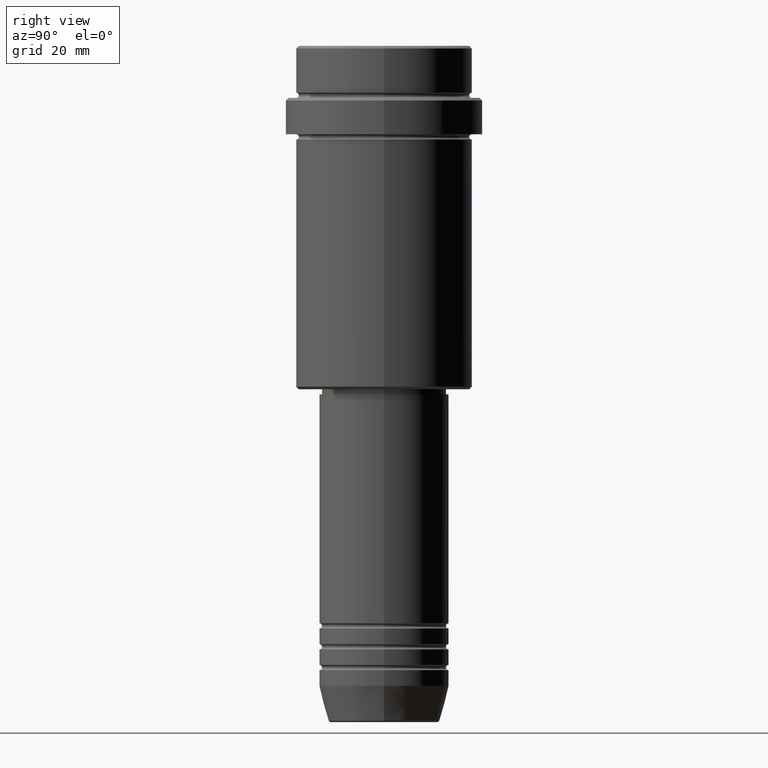
[diagram: clean part render]
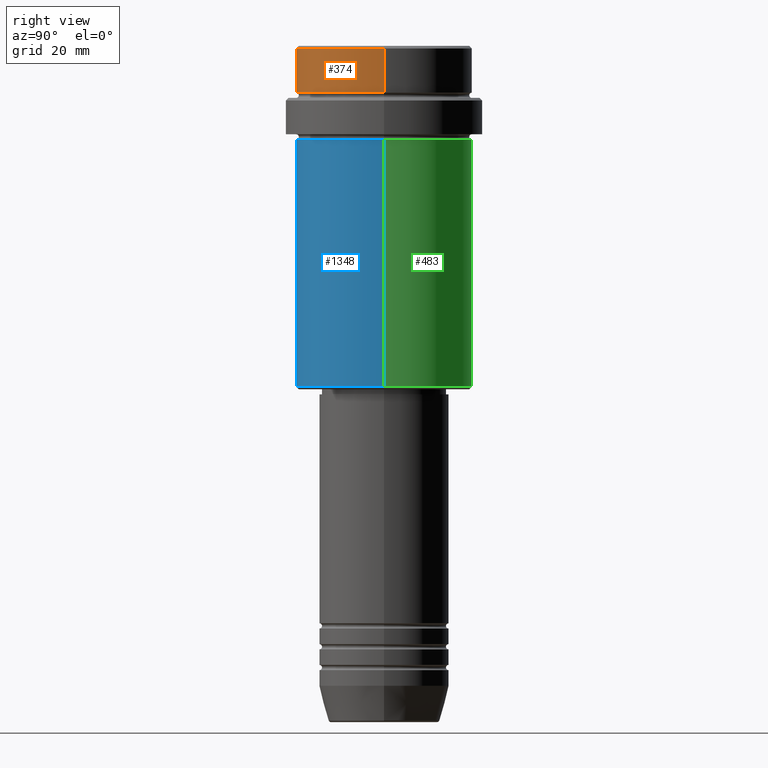
[diagram: same view with three faces highlighted in distinct colors, each labeled with its STEP entity id]
A machine part, right view with three faces highlighted in distinct colors.
Their STEP definitions:

[orange] entity #374 — the highlighted cylindrical surface (partial cylindrical patch) has radius 17 mm, axis along (-0, -0, 1).
#48 = VECTOR ( 'NONE', #995, 1000.000000000000000 ) ;
#126 = EDGE_CURVE ( 'NONE', #633, #400, #157, .T. ) ;
#130 = DIRECTION ( 'NONE',  ( -0.000000000000000000, -0.000000000000000000, 1.000000000000000000 ) ) ;
#157 = LINE ( 'NONE', #910, #572 ) ;
#161 = AXIS2_PLACEMENT_3D ( 'NONE', #1078, #634, #1083 ) ;
#163 = CIRCLE ( 'NONE', #161, 16.99999999999999289 ) ;
#359 = DIRECTION ( 'NONE',  ( -0.000000000000000000, -0.000000000000000000, 1.000000000000000000 ) ) ;
#374 = ADVANCED_FACE ( 'NONE', ( #1056 ), #819, .T. ) ;
#380 = ORIENTED_EDGE ( 'NONE', *, *, #126, .F. ) ;
#386 = AXIS2_PLACEMENT_3D ( 'NONE', #942, #626, #1378 ) ;
#400 = VERTEX_POINT ( 'NONE', #973 ) ;
#480 = EDGE_LOOP ( 'NONE', ( #380, #1364, #1192, #1174 ) ) ;
#541 = CARTESIAN_POINT ( 'NONE',  ( -16.99999999999998579, 2.081899558550499491E-15, -8.999999999999998224 ) ) ;
#572 = VECTOR ( 'NONE', #359, 1000.000000000000000 ) ;
#586 = CARTESIAN_POINT ( 'NONE',  ( 0.000000000000000000, 0.000000000000000000, -8.999999999999998224 ) ) ;
#626 = DIRECTION ( 'NONE',  ( -0.000000000000000000, -0.000000000000000000, 1.000000000000000000 ) ) ;
#633 = VERTEX_POINT ( 'NONE', #541 ) ;
#634 = DIRECTION ( 'NONE',  ( 0.000000000000000000, 0.000000000000000000, -1.000000000000000000 ) ) ;
#668 = LINE ( 'NONE', #761, #48 ) ;
#761 = CARTESIAN_POINT ( 'NONE',  ( 16.99999999999999289, 0.000000000000000000, 0.000000000000000000 ) ) ;
#769 = CARTESIAN_POINT ( 'NONE',  ( 16.99999999999998579, 0.000000000000000000, -8.999999999999998224 ) ) ;
#817 = EDGE_CURVE ( 'NONE', #633, #1114, #1357, .T. ) ;
#819 = CYLINDRICAL_SURFACE ( 'NONE', #386, 16.99999999999999289 ) ;
#905 = CARTESIAN_POINT ( 'NONE',  ( 16.99999999999999289, 0.000000000000000000, -0.4999999999999622524 ) ) ;
#910 = CARTESIAN_POINT ( 'NONE',  ( -16.99999999999999289, 2.081899558550499885E-15, 0.000000000000000000 ) ) ;
#923 = AXIS2_PLACEMENT_3D ( 'NONE', #586, #130, #1256 ) ;
#932 = EDGE_CURVE ( 'NONE', #1114, #1403, #668, .T. ) ;
#942 = CARTESIAN_POINT ( 'NONE',  ( 0.000000000000000000, 0.000000000000000000, 0.000000000000000000 ) ) ;
#973 = CARTESIAN_POINT ( 'NONE',  ( -16.99999999999999289, 2.081899558550499885E-15, -0.4999999999999622524 ) ) ;
#995 = DIRECTION ( 'NONE',  ( -0.000000000000000000, -0.000000000000000000, 1.000000000000000000 ) ) ;
#1056 = FACE_OUTER_BOUND ( 'NONE', #480, .T. ) ;
#1078 = CARTESIAN_POINT ( 'NONE',  ( 0.000000000000000000, 0.000000000000000000, -0.4999999999999622524 ) ) ;
#1083 = DIRECTION ( 'NONE',  ( 1.000000000000000000, 0.000000000000000000, 0.000000000000000000 ) ) ;
#1114 = VERTEX_POINT ( 'NONE', #769 ) ;
#1174 = ORIENTED_EDGE ( 'NONE', *, *, #1249, .T. ) ;
#1192 = ORIENTED_EDGE ( 'NONE', *, *, #932, .T. ) ;
#1249 = EDGE_CURVE ( 'NONE', #1403, #400, #163, .T. ) ;
#1256 = DIRECTION ( 'NONE',  ( 1.000000000000000000, 0.000000000000000000, 0.000000000000000000 ) ) ;
#1357 = CIRCLE ( 'NONE', #923, 16.99999999999998579 ) ;
#1364 = ORIENTED_EDGE ( 'NONE', *, *, #817, .T. ) ;
#1378 = DIRECTION ( 'NONE',  ( 1.000000000000000000, 0.000000000000000000, 0.000000000000000000 ) ) ;
#1403 = VERTEX_POINT ( 'NONE', #905 ) ;

[blue] entity #1348 — the highlighted cylindrical surface (partial cylindrical patch) has radius 17 mm, axis along (-0, -0, 1).
#60 = VERTEX_POINT ( 'NONE', #1008 ) ;
#98 = ORIENTED_EDGE ( 'NONE', *, *, #246, .F. ) ;
#137 = CIRCLE ( 'NONE', #1260, 16.99999999999998579 ) ;
#168 = VERTEX_POINT ( 'NONE', #459 ) ;
#199 = CARTESIAN_POINT ( 'NONE',  ( -16.99999999999999289, 2.081899558550499885E-15, -65.50000000000001421 ) ) ;
#211 = DIRECTION ( 'NONE',  ( -0.000000000000000000, -0.000000000000000000, 1.000000000000000000 ) ) ;
#218 = CARTESIAN_POINT ( 'NONE',  ( 16.99999999999999289, 0.000000000000000000, 0.000000000000000000 ) ) ;
#246 = EDGE_CURVE ( 'NONE', #437, #168, #921, .T. ) ;
#257 = CARTESIAN_POINT ( 'NONE',  ( 0.000000000000000000, 0.000000000000000000, 0.000000000000000000 ) ) ;
#391 = CIRCLE ( 'NONE', #603, 16.99999999999999289 ) ;
#437 = VERTEX_POINT ( 'NONE', #199 ) ;
#459 = CARTESIAN_POINT ( 'NONE',  ( -16.99999999999998579, 2.081899558550499491E-15, -18.00000000000000711 ) ) ;
#468 = DIRECTION ( 'NONE',  ( -0.000000000000000000, -0.000000000000000000, 1.000000000000000000 ) ) ;
#591 = FACE_OUTER_BOUND ( 'NONE', #1173, .T. ) ;
#603 = AXIS2_PLACEMENT_3D ( 'NONE', #1207, #211, #650 ) ;
#650 = DIRECTION ( 'NONE',  ( -1.000000000000000000, 0.000000000000000000, 0.000000000000000000 ) ) ;
#684 = CARTESIAN_POINT ( 'NONE',  ( -16.99999999999999289, 2.081899558550499885E-15, 0.000000000000000000 ) ) ;
#696 = CARTESIAN_POINT ( 'NONE',  ( 16.99999999999999289, 0.000000000000000000, -65.50000000000001421 ) ) ;
#739 = EDGE_CURVE ( 'NONE', #168, #60, #137, .T. ) ;
#745 = DIRECTION ( 'NONE',  ( -0.000000000000000000, -0.000000000000000000, 1.000000000000000000 ) ) ;
#788 = ORIENTED_EDGE ( 'NONE', *, *, #739, .F. ) ;
#797 = CYLINDRICAL_SURFACE ( 'NONE', #834, 16.99999999999999289 ) ;
#834 = AXIS2_PLACEMENT_3D ( 'NONE', #257, #1031, #1148 ) ;
#908 = ORIENTED_EDGE ( 'NONE', *, *, #1196, .T. ) ;
#921 = LINE ( 'NONE', #684, #1276 ) ;
#1008 = CARTESIAN_POINT ( 'NONE',  ( 16.99999999999998579, 0.000000000000000000, -18.00000000000000711 ) ) ;
#1031 = DIRECTION ( 'NONE',  ( -0.000000000000000000, -0.000000000000000000, 1.000000000000000000 ) ) ;
#1048 = DIRECTION ( 'NONE',  ( 1.000000000000000000, 0.000000000000000000, 0.000000000000000000 ) ) ;
#1073 = VECTOR ( 'NONE', #745, 1000.000000000000000 ) ;
#1133 = DIRECTION ( 'NONE',  ( -0.000000000000000000, -0.000000000000000000, 1.000000000000000000 ) ) ;
#1148 = DIRECTION ( 'NONE',  ( 1.000000000000000000, 0.000000000000000000, 0.000000000000000000 ) ) ;
#1173 = EDGE_LOOP ( 'NONE', ( #98, #1248, #908, #788 ) ) ;
#1196 = EDGE_CURVE ( 'NONE', #1347, #60, #1392, .T. ) ;
#1207 = CARTESIAN_POINT ( 'NONE',  ( 0.000000000000000000, 0.000000000000000000, -65.50000000000001421 ) ) ;
#1228 = EDGE_CURVE ( 'NONE', #437, #1347, #391, .T. ) ;
#1248 = ORIENTED_EDGE ( 'NONE', *, *, #1228, .T. ) ;
#1260 = AXIS2_PLACEMENT_3D ( 'NONE', #1273, #468, #1048 ) ;
#1273 = CARTESIAN_POINT ( 'NONE',  ( 0.000000000000000000, 0.000000000000000000, -18.00000000000000711 ) ) ;
#1276 = VECTOR ( 'NONE', #1133, 1000.000000000000000 ) ;
#1347 = VERTEX_POINT ( 'NONE', #696 ) ;
#1348 = ADVANCED_FACE ( 'NONE', ( #591 ), #797, .T. ) ;
#1392 = LINE ( 'NONE', #218, #1073 ) ;

[green] entity #483 — the highlighted cylindrical surface (partial cylindrical patch) has radius 17 mm, axis along (-0, -0, 1).
#11 = DIRECTION ( 'NONE',  ( -1.000000000000000000, 0.000000000000000000, 0.000000000000000000 ) ) ;
#36 = EDGE_CURVE ( 'NONE', #1347, #437, #154, .T. ) ;
#60 = VERTEX_POINT ( 'NONE', #1008 ) ;
#67 = AXIS2_PLACEMENT_3D ( 'NONE', #662, #763, #11 ) ;
#109 = DIRECTION ( 'NONE',  ( -0.000000000000000000, -0.000000000000000000, 1.000000000000000000 ) ) ;
#154 = CIRCLE ( 'NONE', #67, 16.99999999999999289 ) ;
#159 = AXIS2_PLACEMENT_3D ( 'NONE', #1246, #889, #244 ) ;
#168 = VERTEX_POINT ( 'NONE', #459 ) ;
#199 = CARTESIAN_POINT ( 'NONE',  ( -16.99999999999999289, 2.081899558550499885E-15, -65.50000000000001421 ) ) ;
#218 = CARTESIAN_POINT ( 'NONE',  ( 16.99999999999999289, 0.000000000000000000, 0.000000000000000000 ) ) ;
#244 = DIRECTION ( 'NONE',  ( 1.000000000000000000, 0.000000000000000000, 0.000000000000000000 ) ) ;
#246 = EDGE_CURVE ( 'NONE', #437, #168, #921, .T. ) ;
#334 = DIRECTION ( 'NONE',  ( 1.000000000000000000, 0.000000000000000000, 0.000000000000000000 ) ) ;
#437 = VERTEX_POINT ( 'NONE', #199 ) ;
#459 = CARTESIAN_POINT ( 'NONE',  ( -16.99999999999998579, 2.081899558550499491E-15, -18.00000000000000711 ) ) ;
#483 = ADVANCED_FACE ( 'NONE', ( #1098 ), #766, .T. ) ;
#521 = AXIS2_PLACEMENT_3D ( 'NONE', #1106, #109, #334 ) ;
#643 = ORIENTED_EDGE ( 'NONE', *, *, #809, .F. ) ;
#662 = CARTESIAN_POINT ( 'NONE',  ( 0.000000000000000000, 0.000000000000000000, -65.50000000000001421 ) ) ;
#684 = CARTESIAN_POINT ( 'NONE',  ( -16.99999999999999289, 2.081899558550499885E-15, 0.000000000000000000 ) ) ;
#696 = CARTESIAN_POINT ( 'NONE',  ( 16.99999999999999289, 0.000000000000000000, -65.50000000000001421 ) ) ;
#716 = ORIENTED_EDGE ( 'NONE', *, *, #36, .T. ) ;
#745 = DIRECTION ( 'NONE',  ( -0.000000000000000000, -0.000000000000000000, 1.000000000000000000 ) ) ;
#763 = DIRECTION ( 'NONE',  ( -0.000000000000000000, -0.000000000000000000, 1.000000000000000000 ) ) ;
#766 = CYLINDRICAL_SURFACE ( 'NONE', #521, 16.99999999999999289 ) ;
#809 = EDGE_CURVE ( 'NONE', #60, #168, #877, .T. ) ;
#852 = ORIENTED_EDGE ( 'NONE', *, *, #1196, .F. ) ;
#877 = CIRCLE ( 'NONE', #159, 16.99999999999998579 ) ;
#889 = DIRECTION ( 'NONE',  ( -0.000000000000000000, -0.000000000000000000, 1.000000000000000000 ) ) ;
#921 = LINE ( 'NONE', #684, #1276 ) ;
#1008 = CARTESIAN_POINT ( 'NONE',  ( 16.99999999999998579, 0.000000000000000000, -18.00000000000000711 ) ) ;
#1073 = VECTOR ( 'NONE', #745, 1000.000000000000000 ) ;
#1098 = FACE_OUTER_BOUND ( 'NONE', #1415, .T. ) ;
#1106 = CARTESIAN_POINT ( 'NONE',  ( 0.000000000000000000, 0.000000000000000000, 0.000000000000000000 ) ) ;
#1133 = DIRECTION ( 'NONE',  ( -0.000000000000000000, -0.000000000000000000, 1.000000000000000000 ) ) ;
#1196 = EDGE_CURVE ( 'NONE', #1347, #60, #1392, .T. ) ;
#1246 = CARTESIAN_POINT ( 'NONE',  ( 0.000000000000000000, 0.000000000000000000, -18.00000000000000711 ) ) ;
#1276 = VECTOR ( 'NONE', #1133, 1000.000000000000000 ) ;
#1347 = VERTEX_POINT ( 'NONE', #696 ) ;
#1374 = ORIENTED_EDGE ( 'NONE', *, *, #246, .T. ) ;
#1392 = LINE ( 'NONE', #218, #1073 ) ;
#1415 = EDGE_LOOP ( 'NONE', ( #716, #1374, #643, #852 ) ) ;